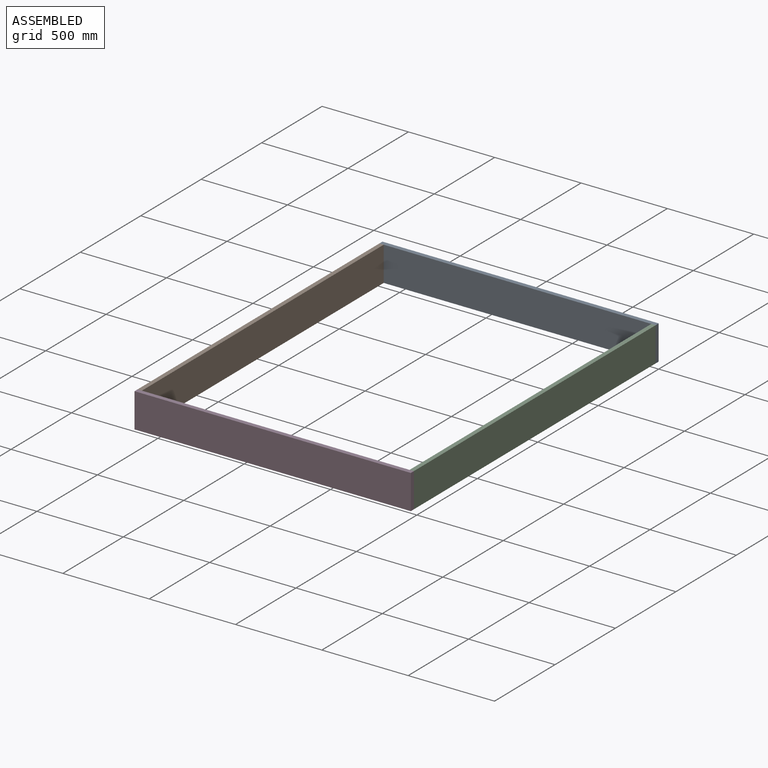
[diagram: assembled view]
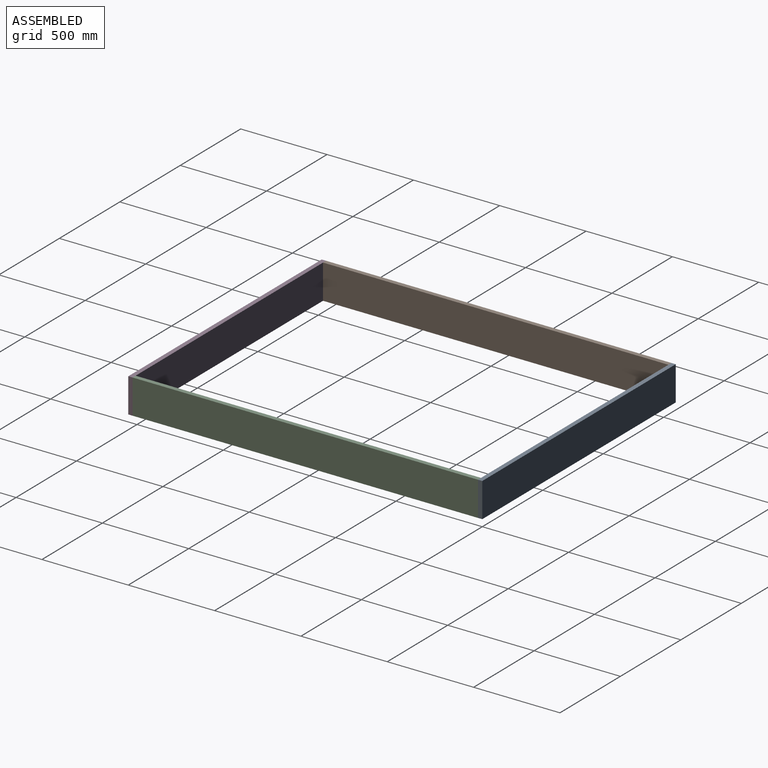
[diagram: assembled view, second angle]
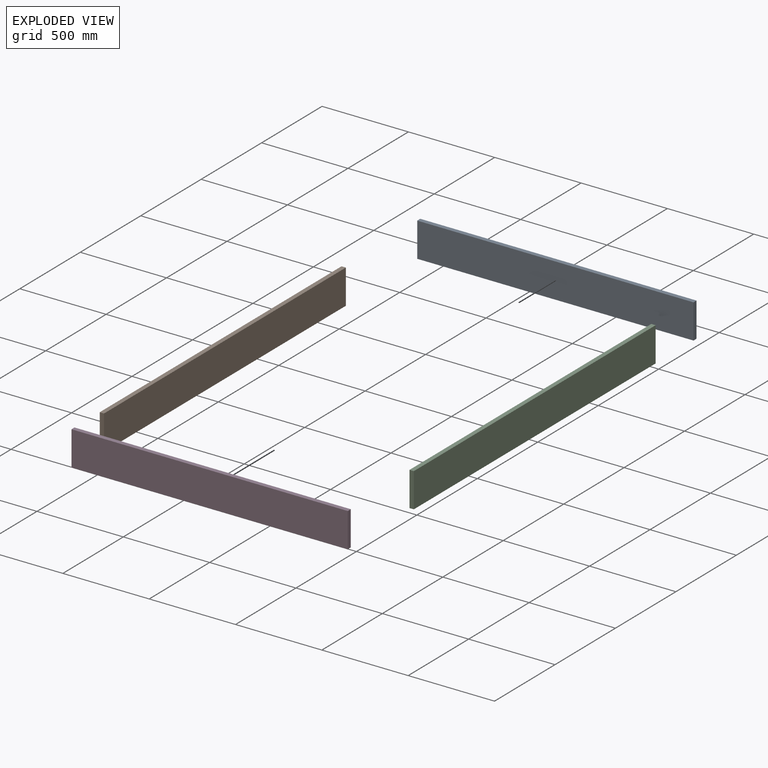
[diagram: exploded view]
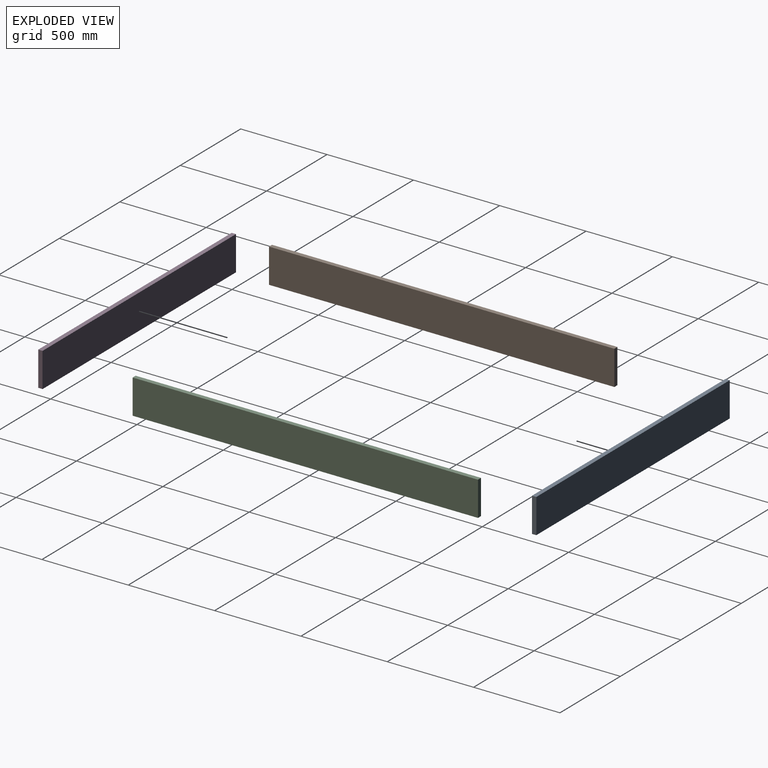
[diagram: exploded view, second angle]
ASSEMBLY  parts=4 mates=3
PART A: 6 faces, bbox 1600x25x200 mm
  f0: plane 1600x25mm, normal (0,0,1), area 40000mm2, adj f1,f3,f4,f5
  f1: plane 200x25mm, normal (-1,0,0), area 5000mm2, adj f0,f2,f4,f5
  f2: plane 1600x25mm, normal (0,0,-1), area 40000mm2, adj f1,f3,f4,f5
  f3: plane 200x25mm, normal (1,0,0), area 5000mm2, adj f0,f2,f4,f5
  f4: plane 1600x200mm, normal (0,-1,0), area 320000mm2, adj f0,f1,f2,f3
  f5: plane 1600x200mm, normal (0,1,0), area 320000mm2, adj f0,f1,f2,f3
PART B: 6 faces, bbox 2000x25x200 mm
  f0: plane 2000x25mm, normal (0,0,1), area 50000mm2, adj f1,f3,f4,f5
  f1: plane 200x25mm, normal (-1,0,0), area 5000mm2, adj f0,f2,f4,f5
  f2: plane 2000x25mm, normal (0,0,-1), area 50000mm2, adj f1,f3,f4,f5
  f3: plane 200x25mm, normal (1,0,0), area 5000mm2, adj f0,f2,f4,f5
  f4: plane 2000x200mm, normal (0,-1,0), area 400000mm2, adj f0,f1,f2,f3
  f5: plane 2000x200mm, normal (0,1,0), area 400000mm2, adj f0,f1,f2,f3
PART C: same geometry as B
PART D: same geometry as A
PLACE A at identity
PLACE B rot(axis=(0,0,1),90deg) t=(-1600,-25,0)mm
PLACE C rot(axis=(0,0,-1),90deg) t=(0,-2025,0)mm
PLACE D t=(0,-2025,0)mm
MATE fastened B.f3 <-> A.f4  axis (0,1,0) through (-1600,-25,0)mm
MATE fastened C.f1 <-> A.f4  axis (0,1,0) through (0,-25,0)mm
MATE fastened D.f5 <-> C.f3  axis (0,1,0) through (0,-2025,0)mm
